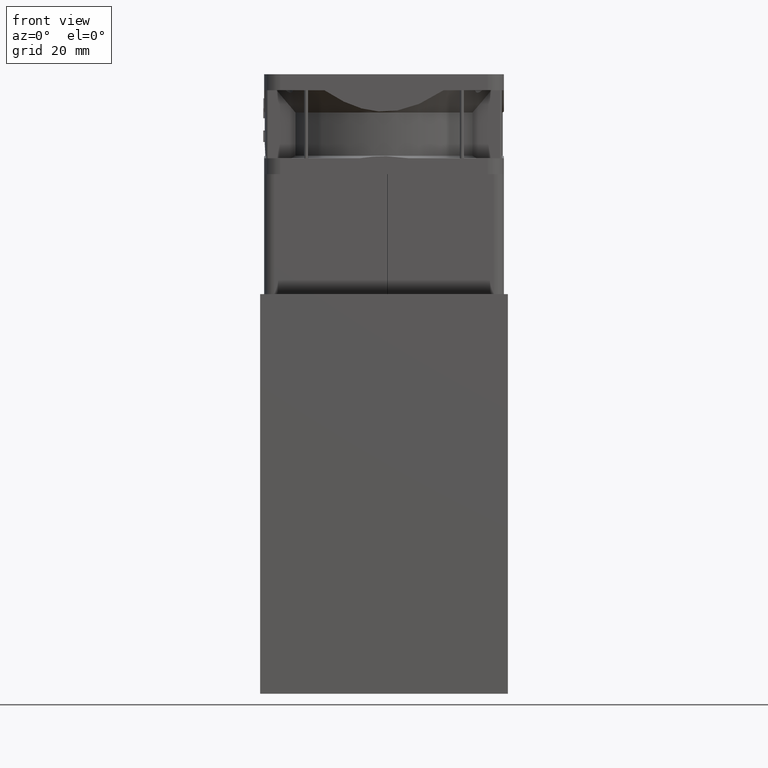
[diagram: clean part render]
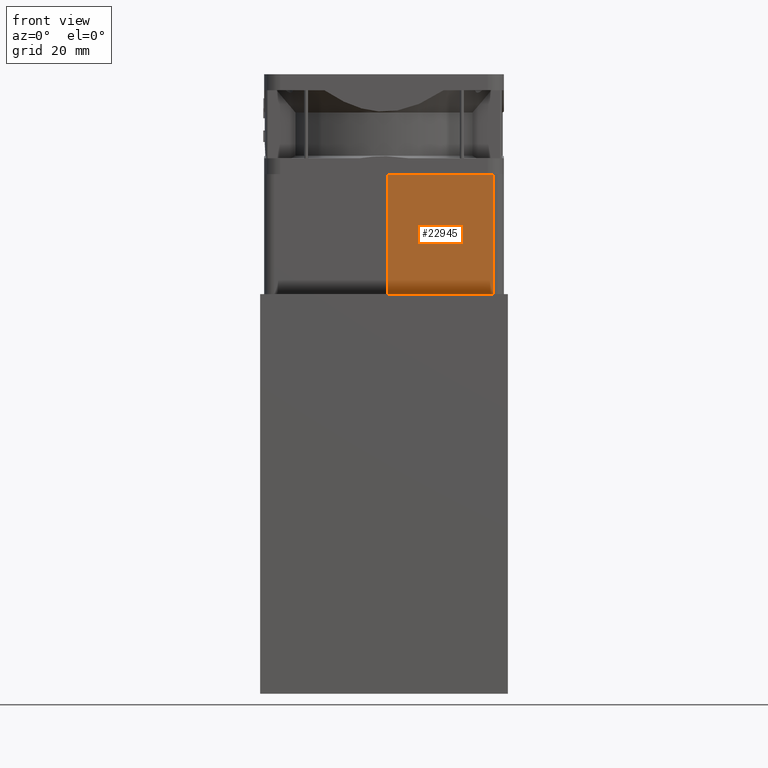
[diagram: same view with one face highlighted and labeled with its STEP entity id]
A machine part, front view. The second image highlights one B-rep face of the part: STEP entity #22945.
In plain terms, the highlighted planar face has unit normal (-0, 1, -0).
Its self-contained STEP definition (entity closure, byte-faithful):
#1348 = EDGE_CURVE ( 'NONE', #10787, #19811, #11410, .T. ) ;
#1826 = CARTESIAN_POINT ( 'NONE',  ( 29.99999999999997513, 12.85714285714282745, 30.00000000000000000 ) ) ;
#3499 = PLANE ( 'NONE',  #8588 ) ;
#3858 = CARTESIAN_POINT ( 'NONE',  ( 30.00000000000000000, -13.61344537815125477, 0.000000000000000000 ) ) ;
#5110 = ORIENTED_EDGE ( 'NONE', *, *, #30636, .T. ) ;
#5485 = ORIENTED_EDGE ( 'NONE', *, *, #15678, .F. ) ;
#6607 = CARTESIAN_POINT ( 'NONE',  ( 29.99999999999997513, 12.85714285714282745, 30.00000000000000000 ) ) ;
#8221 = DIRECTION ( 'NONE',  ( -7.864079757761631662E-16, 1.000000000000000000, -1.567082167785077672E-30 ) ) ;
#8588 = AXIS2_PLACEMENT_3D ( 'NONE', #13318, #23662, #13815 ) ;
#8892 = LINE ( 'NONE', #31308, #15185 ) ;
#9611 = DIRECTION ( 'NONE',  ( -7.864079757761631662E-16, 1.000000000000000000, -1.567082167785077672E-30 ) ) ;
#10787 = VERTEX_POINT ( 'NONE', #1826 ) ;
#11410 = LINE ( 'NONE', #6607, #11476 ) ;
#11476 = VECTOR ( 'NONE', #28534, 1000.000000000000000 ) ;
#11692 = LINE ( 'NONE', #21539, #26374 ) ;
#13052 = VERTEX_POINT ( 'NONE', #29816 ) ;
#13201 = LINE ( 'NONE', #3858, #18780 ) ;
#13318 = CARTESIAN_POINT ( 'NONE',  ( 30.00000000000000000, -13.61344537815125477, 30.00000000000000000 ) ) ;
#13429 = EDGE_LOOP ( 'NONE', ( #5110, #21657, #5485, #25044 ) ) ;
#13815 = DIRECTION ( 'NONE',  ( 7.864079757761631662E-16, -1.000000000000000000, 1.567082167785077672E-30 ) ) ;
#15185 = VECTOR ( 'NONE', #19045, 1000.000000000000000 ) ;
#15678 = EDGE_CURVE ( 'NONE', #13052, #10787, #11692, .T. ) ;
#17465 = CARTESIAN_POINT ( 'NONE',  ( 29.99999999999997513, 12.85714285714282745, 0.000000000000000000 ) ) ;
#18780 = VECTOR ( 'NONE', #8221, 1000.000000000000000 ) ;
#19045 = DIRECTION ( 'NONE',  ( 3.363116314379565451E-44, 1.567082167785079599E-30, -1.000000000000000000 ) ) ;
#19811 = VERTEX_POINT ( 'NONE', #17465 ) ;
#21539 = CARTESIAN_POINT ( 'NONE',  ( 30.00000000000000000, -13.61344537815125477, 30.00000000000000000 ) ) ;
#21657 = ORIENTED_EDGE ( 'NONE', *, *, #1348, .F. ) ;
#22096 = EDGE_CURVE ( 'NONE', #13052, #29874, #8892, .T. ) ;
#22945 = ADVANCED_FACE ( 'NONE', ( #25607 ), #3499, .F. ) ;
#23294 = CARTESIAN_POINT ( 'NONE',  ( 29.99999999999999289, -13.61344537815125477, 0.000000000000000000 ) ) ;
#23662 = DIRECTION ( 'NONE',  ( -1.000000000000000000, -7.864079757761631662E-16, 3.363116314379563957E-44 ) ) ;
#25044 = ORIENTED_EDGE ( 'NONE', *, *, #22096, .T. ) ;
#25607 = FACE_OUTER_BOUND ( 'NONE', #13429, .T. ) ;
#26374 = VECTOR ( 'NONE', #9611, 1000.000000000000000 ) ;
#28534 = DIRECTION ( 'NONE',  ( 3.363116314379565451E-44, 1.567082167785079599E-30, -1.000000000000000000 ) ) ;
#29816 = CARTESIAN_POINT ( 'NONE',  ( 29.99999999999999289, -13.61344537815125477, 30.00000000000000000 ) ) ;
#29874 = VERTEX_POINT ( 'NONE', #23294 ) ;
#30636 = EDGE_CURVE ( 'NONE', #29874, #19811, #13201, .T. ) ;
#31308 = CARTESIAN_POINT ( 'NONE',  ( 29.99999999999999289, -13.61344537815125477, 30.00000000000000000 ) ) ;